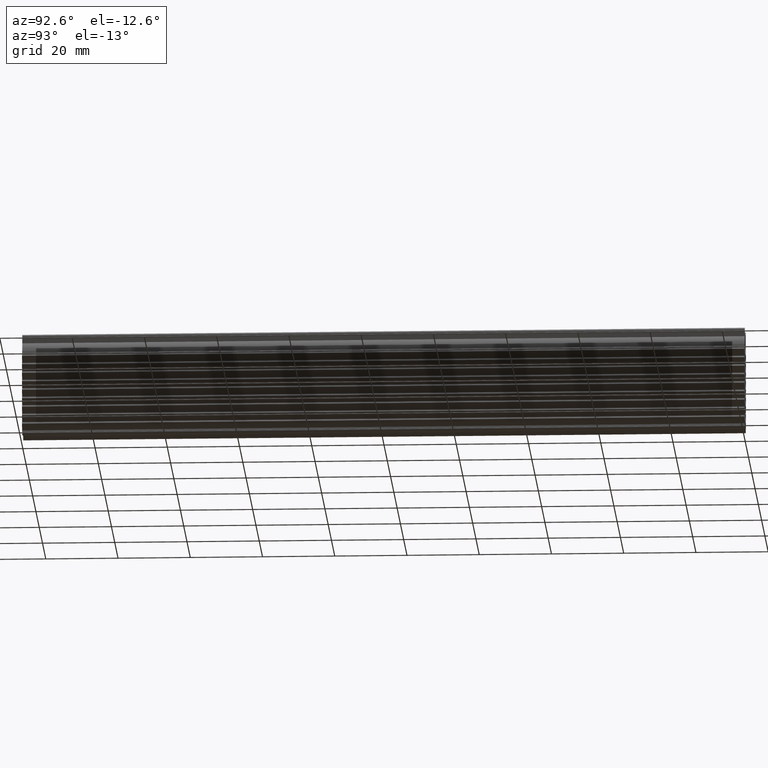
[diagram: clean part render]
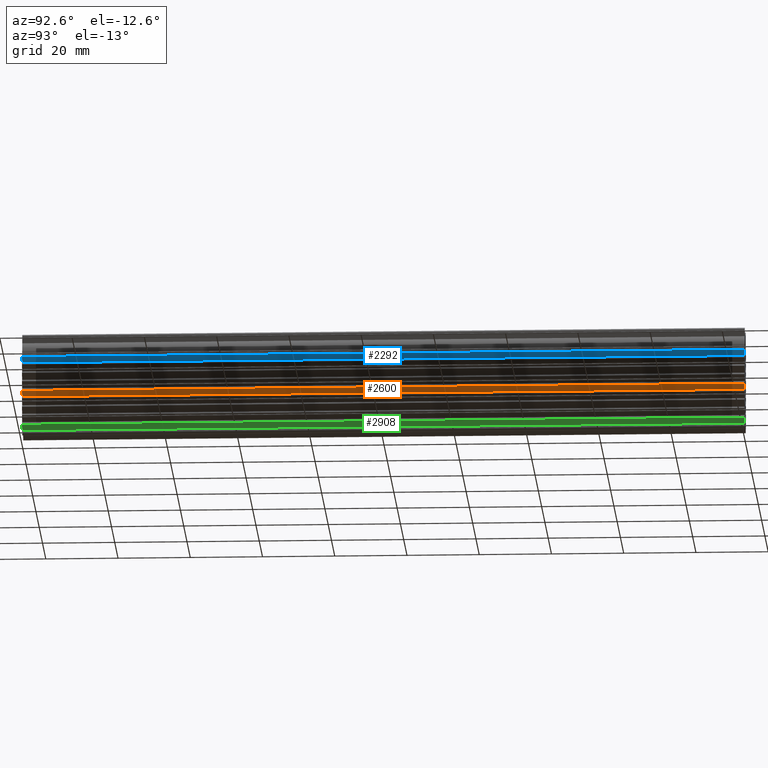
[diagram: same view with three faces highlighted in distinct colors, each labeled with its STEP entity id]
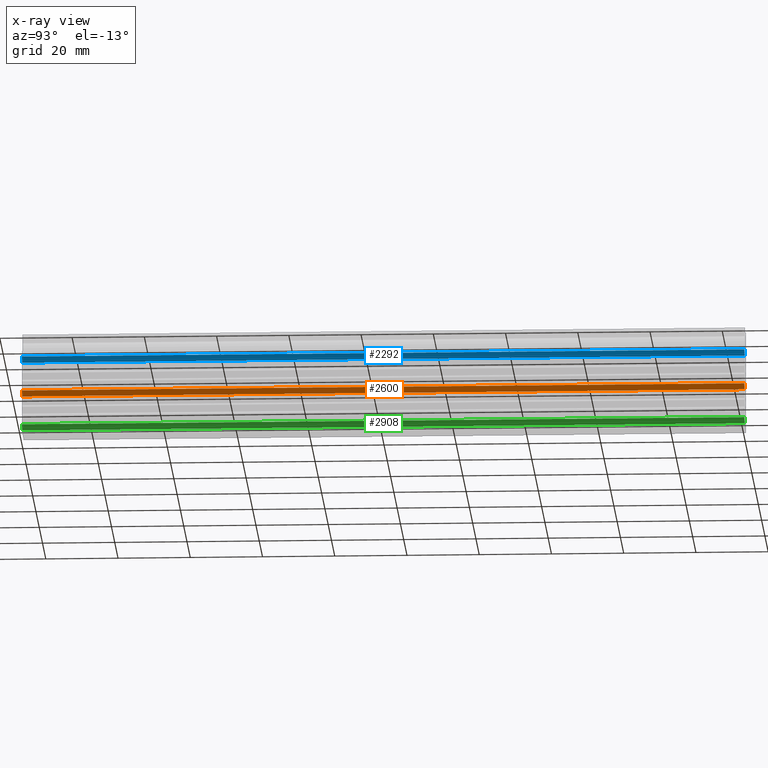
[diagram: x-ray of the same camera — body ghosted, the three highlighted faces saturated]
A machine part, auxiliary view with three faces highlighted in distinct colors.
The next image is the same camera in x-ray (body ghosted, the three faces saturated) — at least one of them is partly hidden behind the body in this view.
Their STEP definitions:

[orange] entity #2600 — the highlighted face is a freeform B-spline surface patch.
#663=CARTESIAN_POINT('',(3.750000000000000,0.0,-16.224264068709001));
#664=VERTEX_POINT('',#663);
#670=CARTESIAN_POINT('',(5.162132034355960,0.0,-14.812132034355960));
#671=VERTEX_POINT('',#670);
#672=CARTESIAN_POINT('',(3.750000000000000,0.0,-16.224264068709001));
#673=CARTESIAN_POINT('',(5.162132034355960,0.0,-14.812132034355960));
#674=QUASI_UNIFORM_CURVE('',1,(#672,#673),.UNSPECIFIED.,.F.,.U.);
#675=EDGE_CURVE('',#664,#671,#674,.T.);
#1269=CARTESIAN_POINT('',(5.162132034355960,200.0,-14.812132034355960));
#1270=VERTEX_POINT('',#1269);
#1286=CARTESIAN_POINT('',(3.750000000000000,200.0,-16.224264068709001));
#1287=VERTEX_POINT('',#1286);
#1288=CARTESIAN_POINT('',(3.750000000000000,200.0,-16.224264068709001));
#1289=CARTESIAN_POINT('',(5.162132034355960,200.0,-14.812132034355960));
#1290=QUASI_UNIFORM_CURVE('',1,(#1288,#1289),.UNSPECIFIED.,.F.,.U.);
#1291=EDGE_CURVE('',#1287,#1270,#1290,.T.);
#2575=CARTESIAN_POINT('',(5.162132034355960,200.0,-14.812132034355960));
#2576=CARTESIAN_POINT('',(5.162132034355960,0.0,-14.812132034355960));
#2577=QUASI_UNIFORM_CURVE('',1,(#2575,#2576),.UNSPECIFIED.,.F.,.U.);
#2578=EDGE_CURVE('',#1270,#671,#2577,.T.);
#2585=CARTESIAN_POINT('',(5.232668225576324,-9.989999612361194,-14.741595843135720));
#2586=CARTESIAN_POINT('',(3.679463960284951,-9.989999612361194,-16.294800108423889));
#2587=CARTESIAN_POINT('',(5.232668225576324,209.990004976779200,-14.741595843135720));
#2588=CARTESIAN_POINT('',(3.679463960284951,209.990004976779200,-16.294800108423889));
#2589=B_SPLINE_SURFACE_WITH_KNOTS('',1,1,((#2585,#2587),(#2586,#2588)),.UNSPECIFIED.,.F.,.F.,.U.,(2,2),(2,2),(0.0,2.196562537108528),(0.0,219.980004589140410),.UNSPECIFIED.);
#2590=ORIENTED_EDGE('',*,*,#675,.F.);
#2591=CARTESIAN_POINT('',(3.750000000000000,200.0,-16.224264068709001));
#2592=CARTESIAN_POINT('',(3.750000000000000,0.0,-16.224264068709001));
#2593=QUASI_UNIFORM_CURVE('',1,(#2591,#2592),.UNSPECIFIED.,.F.,.U.);
#2594=EDGE_CURVE('',#1287,#664,#2593,.T.);
#2595=ORIENTED_EDGE('',*,*,#2594,.F.);
#2596=ORIENTED_EDGE('',*,*,#1291,.T.);
#2597=ORIENTED_EDGE('',*,*,#2578,.T.);
#2598=EDGE_LOOP('',(#2590,#2595,#2596,#2597));
#2599=FACE_OUTER_BOUND('',#2598,.T.);
#2600=ADVANCED_FACE('',(#2599),#2589,.T.);

[blue] entity #2292 — the highlighted face is a freeform B-spline surface patch.
#815=CARTESIAN_POINT('',(3.750000000000000,0.0,-6.624264068708841));
#816=VERTEX_POINT('',#815);
#822=CARTESIAN_POINT('',(5.162132034355929,0.0,-5.212132034355930));
#823=VERTEX_POINT('',#822);
#824=CARTESIAN_POINT('',(3.750000000000000,0.0,-6.624264068708841));
#825=CARTESIAN_POINT('',(5.162132034355929,0.0,-5.212132034355930));
#826=QUASI_UNIFORM_CURVE('',1,(#824,#825),.UNSPECIFIED.,.F.,.U.);
#827=EDGE_CURVE('',#816,#823,#826,.T.);
#1117=CARTESIAN_POINT('',(5.162132034355929,200.0,-5.212132034355930));
#1118=VERTEX_POINT('',#1117);
#1134=CARTESIAN_POINT('',(3.750000000000000,200.0,-6.624264068708841));
#1135=VERTEX_POINT('',#1134);
#1136=CARTESIAN_POINT('',(3.750000000000000,200.0,-6.624264068708841));
#1137=CARTESIAN_POINT('',(5.162132034355929,200.0,-5.212132034355930));
#1138=QUASI_UNIFORM_CURVE('',1,(#1136,#1137),.UNSPECIFIED.,.F.,.U.);
#1139=EDGE_CURVE('',#1135,#1118,#1138,.T.);
#2267=CARTESIAN_POINT('',(5.162132034355929,200.0,-5.212132034355930));
#2268=CARTESIAN_POINT('',(5.162132034355929,0.0,-5.212132034355930));
#2269=QUASI_UNIFORM_CURVE('',1,(#2267,#2268),.UNSPECIFIED.,.F.,.U.);
#2270=EDGE_CURVE('',#1118,#823,#2269,.T.);
#2277=CARTESIAN_POINT('',(5.232668190853170,-9.989999612361183,-5.141595877858835));
#2278=CARTESIAN_POINT('',(3.679463856128250,-9.989999612361183,-6.694800212580537));
#2279=CARTESIAN_POINT('',(5.232668190853170,209.990004976779200,-5.141595877858835));
#2280=CARTESIAN_POINT('',(3.679463856128250,209.990004976779200,-6.694800212580537));
#2281=B_SPLINE_SURFACE_WITH_KNOTS('',1,1,((#2277,#2279),(#2278,#2280)),.UNSPECIFIED.,.F.,.F.,.U.,(2,2),(2,2),(0.0,2.196562635302386),(0.0,219.980004589140410),.UNSPECIFIED.);
#2282=ORIENTED_EDGE('',*,*,#827,.F.);
#2283=CARTESIAN_POINT('',(3.750000000000000,200.0,-6.624264068708841));
#2284=CARTESIAN_POINT('',(3.750000000000000,0.0,-6.624264068708841));
#2285=QUASI_UNIFORM_CURVE('',1,(#2283,#2284),.UNSPECIFIED.,.F.,.U.);
#2286=EDGE_CURVE('',#1135,#816,#2285,.T.);
#2287=ORIENTED_EDGE('',*,*,#2286,.F.);
#2288=ORIENTED_EDGE('',*,*,#1139,.T.);
#2289=ORIENTED_EDGE('',*,*,#2270,.T.);
#2290=EDGE_LOOP('',(#2282,#2287,#2288,#2289));
#2291=FACE_OUTER_BOUND('',#2290,.T.);
#2292=ADVANCED_FACE('',(#2291),#2281,.T.);

[green] entity #2908 — the highlighted face is a freeform B-spline surface patch.
#511=CARTESIAN_POINT('',(3.750000000000000,0.0,-25.824264068708999));
#512=VERTEX_POINT('',#511);
#518=CARTESIAN_POINT('',(5.162132034355960,0.0,-24.412132034355999));
#519=VERTEX_POINT('',#518);
#520=CARTESIAN_POINT('',(3.750000000000000,0.0,-25.824264068708999));
#521=CARTESIAN_POINT('',(5.162132034355960,0.0,-24.412132034355999));
#522=QUASI_UNIFORM_CURVE('',1,(#520,#521),.UNSPECIFIED.,.F.,.U.);
#523=EDGE_CURVE('',#512,#519,#522,.T.);
#1421=CARTESIAN_POINT('',(5.162132034355960,200.0,-24.412132034355999));
#1422=VERTEX_POINT('',#1421);
#1438=CARTESIAN_POINT('',(3.750000000000000,200.0,-25.824264068708999));
#1439=VERTEX_POINT('',#1438);
#1440=CARTESIAN_POINT('',(3.750000000000000,200.0,-25.824264068708999));
#1441=CARTESIAN_POINT('',(5.162132034355960,200.0,-24.412132034355999));
#1442=QUASI_UNIFORM_CURVE('',1,(#1440,#1441),.UNSPECIFIED.,.F.,.U.);
#1443=EDGE_CURVE('',#1439,#1422,#1442,.T.);
#2883=CARTESIAN_POINT('',(5.162132034355960,200.0,-24.412132034355999));
#2884=CARTESIAN_POINT('',(5.162132034355960,0.0,-24.412132034355999));
#2885=QUASI_UNIFORM_CURVE('',1,(#2883,#2884),.UNSPECIFIED.,.F.,.U.);
#2886=EDGE_CURVE('',#1422,#519,#2885,.T.);
#2893=CARTESIAN_POINT('',(5.232668036825307,-9.989999612361194,-24.341596031886791));
#2894=CARTESIAN_POINT('',(3.679463757647224,-9.989999612361194,-25.894800311061658));
#2895=CARTESIAN_POINT('',(5.232668036825307,209.990004976779200,-24.341596031886791));
#2896=CARTESIAN_POINT('',(3.679463757647224,209.990004976779200,-25.894800311061658));
#2897=B_SPLINE_SURFACE_WITH_KNOTS('',1,1,((#2893,#2895),(#2894,#2896)),.UNSPECIFIED.,.F.,.F.,.U.,(2,2),(2,2),(0.0,2.196562556747300),(0.0,219.980004589140410),.UNSPECIFIED.);
#2898=ORIENTED_EDGE('',*,*,#523,.F.);
#2899=CARTESIAN_POINT('',(3.750000000000000,200.0,-25.824264068708999));
#2900=CARTESIAN_POINT('',(3.750000000000000,0.0,-25.824264068708999));
#2901=QUASI_UNIFORM_CURVE('',1,(#2899,#2900),.UNSPECIFIED.,.F.,.U.);
#2902=EDGE_CURVE('',#1439,#512,#2901,.T.);
#2903=ORIENTED_EDGE('',*,*,#2902,.F.);
#2904=ORIENTED_EDGE('',*,*,#1443,.T.);
#2905=ORIENTED_EDGE('',*,*,#2886,.T.);
#2906=EDGE_LOOP('',(#2898,#2903,#2904,#2905));
#2907=FACE_OUTER_BOUND('',#2906,.T.);
#2908=ADVANCED_FACE('',(#2907),#2897,.T.);